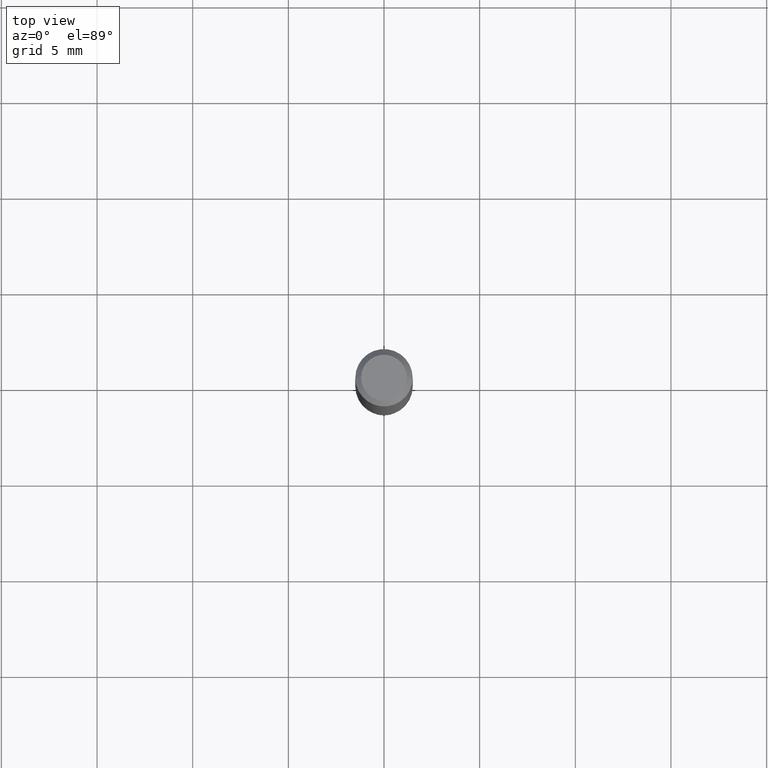
[diagram: clean part render]
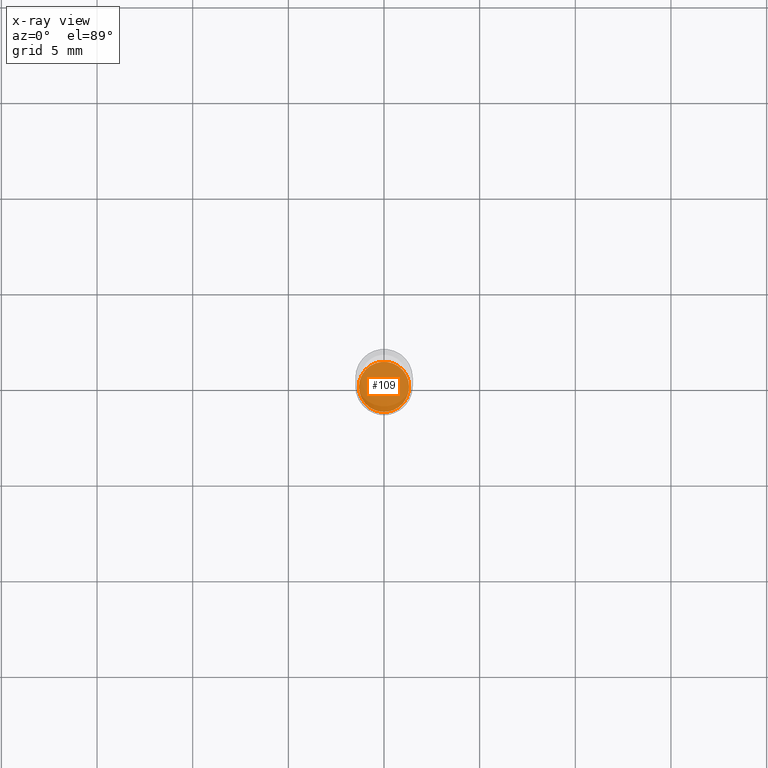
[diagram: x-ray — body ghosted, one internal face saturated and labeled with its STEP entity id]
A machine part, top view, then the same camera in x-ray: the body is ghosted and one INTERNAL B-rep face — a face not visible from any outside direction — is saturated and labeled: STEP entity #109.
In plain terms, the highlighted planar face has unit normal (-0, 0, 1).
Its self-contained STEP definition (entity closure, byte-faithful):
#5 = VERTEX_POINT ( 'NONE', #52 ) ;
#15 = AXIS2_PLACEMENT_3D ( 'NONE', #269, #86, #219 ) ;
#52 = CARTESIAN_POINT ( 'NONE',  ( -0.05164999999999999453, -3.451781775169620013E-15, -1.094500000000000028 ) ) ;
#62 = ORIENTED_EDGE ( 'NONE', *, *, #77, .F. ) ;
#77 = EDGE_CURVE ( 'NONE', #5, #453, #372, .T. ) ;
#86 = DIRECTION ( 'NONE',  ( -2.445468806185136597E-29, 3.491481338843145583E-15, 1.000000000000000000 ) ) ;
#109 = ADVANCED_FACE ( 'NONE', ( #222 ), #414, .F. ) ;
#118 = DIRECTION ( 'NONE',  ( 1.000000000000000000, -6.982962677686265922E-15, 4.876176775795935793E-29 ) ) ;
#219 = DIRECTION ( 'NONE',  ( 1.000000000000000000, -6.982962677686269077E-15, 0.000000000000000000 ) ) ;
#222 = FACE_OUTER_BOUND ( 'NONE', #415, .T. ) ;
#227 = CARTESIAN_POINT ( 'NONE',  ( 6.553544099415745131E-30, -6.715915801709937704E-15, -1.094500000000000028 ) ) ;
#269 = CARTESIAN_POINT ( 'NONE',  ( 2.676565608369632355E-29, -3.821426325363822773E-15, -1.094500000000000028 ) ) ;
#279 = CARTESIAN_POINT ( 'NONE',  ( 2.676565608369632355E-29, -3.821426325363822773E-15, -1.094500000000000028 ) ) ;
#340 = AXIS2_PLACEMENT_3D ( 'NONE', #227, #489, #118 ) ;
#342 = DIRECTION ( 'NONE',  ( -2.445468806185136597E-29, 3.491481338843145583E-15, 1.000000000000000000 ) ) ;
#372 = CIRCLE ( 'NONE', #15, 0.05164999999999999453 ) ;
#374 = EDGE_CURVE ( 'NONE', #453, #5, #480, .T. ) ;
#388 = AXIS2_PLACEMENT_3D ( 'NONE', #279, #342, #391 ) ;
#391 = DIRECTION ( 'NONE',  ( 1.000000000000000000, -6.982962677686269077E-15, 0.000000000000000000 ) ) ;
#413 = ORIENTED_EDGE ( 'NONE', *, *, #374, .F. ) ;
#414 = PLANE ( 'NONE',  #340 ) ;
#415 = EDGE_LOOP ( 'NONE', ( #413, #62 ) ) ;
#453 = VERTEX_POINT ( 'NONE', #468 ) ;
#468 = CARTESIAN_POINT ( 'NONE',  ( 0.05164999999999999453, -4.182096347666318821E-15, -1.094500000000000028 ) ) ;
#480 = CIRCLE ( 'NONE', #388, 0.05164999999999999453 ) ;
#489 = DIRECTION ( 'NONE',  ( -2.438088387897960049E-29, 3.491481338843145188E-15, 1.000000000000000000 ) ) ;